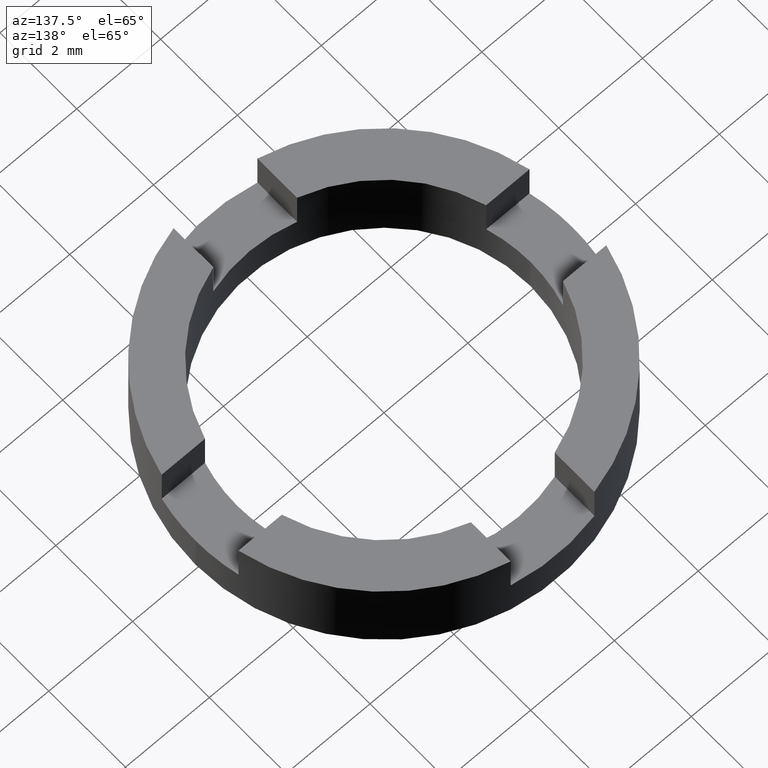
[diagram: clean part render]
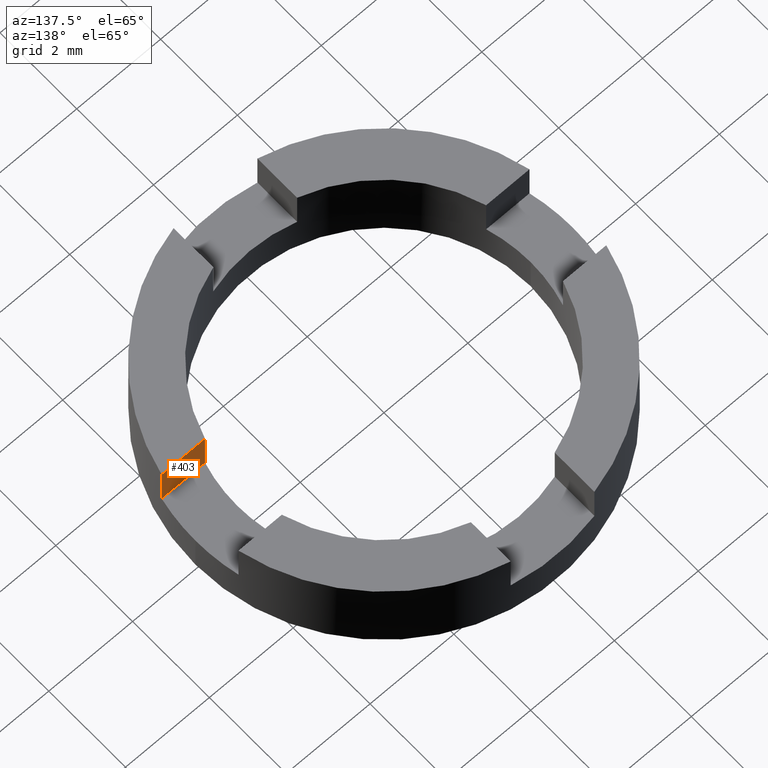
[diagram: same view with one face highlighted and labeled with its STEP entity id]
A machine part, auxiliary view. The second image highlights one B-rep face of the part: STEP entity #403.
In plain terms, the highlighted planar face has unit normal (0, -1, 0).
Its self-contained STEP definition (entity closure, byte-faithful):
#18 = CARTESIAN_POINT ( 'NONE',  ( 4.387482193696071064, -0.9999999999999544809, 1.000000000000000000 ) ) ;
#36 = AXIS2_PLACEMENT_3D ( 'NONE', #592, #166, #656 ) ;
#49 = EDGE_CURVE ( 'NONE', #704, #588, #664, .T. ) ;
#53 = DIRECTION ( 'NONE',  ( 0.000000000000000000, 0.000000000000000000, 1.000000000000000000 ) ) ;
#56 = CARTESIAN_POINT ( 'NONE',  ( 3.354101966249698030, -0.9999999999999547029, 2.000000000000000000 ) ) ;
#75 = EDGE_CURVE ( 'NONE', #128, #678, #777, .T. ) ;
#88 = VECTOR ( 'NONE', #778, 1000.000000000000000 ) ;
#99 = VECTOR ( 'NONE', #603, 1000.000000000000000 ) ;
#122 = CARTESIAN_POINT ( 'NONE',  ( 3.354101966249698030, -0.9999999999999547029, 1.000000000000000000 ) ) ;
#128 = VERTEX_POINT ( 'NONE', #18 ) ;
#166 = DIRECTION ( 'NONE',  ( 1.279323200775837468E-16, -1.000000000000000000, 0.000000000000000000 ) ) ;
#232 = LINE ( 'NONE', #315, #379 ) ;
#274 = ORIENTED_EDGE ( 'NONE', *, *, #670, .T. ) ;
#278 = PLANE ( 'NONE',  #36 ) ;
#298 = VECTOR ( 'NONE', #53, 1000.000000000000000 ) ;
#315 = CARTESIAN_POINT ( 'NONE',  ( 2.805037895306199403, -0.9999999999999547029, 2.000000000000000000 ) ) ;
#379 = VECTOR ( 'NONE', #673, 1000.000000000000000 ) ;
#403 = ADVANCED_FACE ( 'NONE', ( #586 ), #278, .F. ) ;
#404 = CARTESIAN_POINT ( 'NONE',  ( 3.354101966249698030, -0.9999999999999547029, 2.000000000000000000 ) ) ;
#421 = EDGE_CURVE ( 'NONE', #704, #128, #715, .T. ) ;
#437 = ORIENTED_EDGE ( 'NONE', *, *, #49, .T. ) ;
#469 = CARTESIAN_POINT ( 'NONE',  ( 2.805037895306199403, -0.9999999999999547029, 1.000000000000000000 ) ) ;
#548 = CARTESIAN_POINT ( 'NONE',  ( 4.387482193696071064, -0.9999999999999544809, 2.000000000000000000 ) ) ;
#586 = FACE_OUTER_BOUND ( 'NONE', #640, .T. ) ;
#588 = VERTEX_POINT ( 'NONE', #404 ) ;
#592 = CARTESIAN_POINT ( 'NONE',  ( 2.805037895306199403, -0.9999999999999547029, 1.000000000000000000 ) ) ;
#603 = DIRECTION ( 'NONE',  ( 0.000000000000000000, 0.000000000000000000, 1.000000000000000000 ) ) ;
#624 = ORIENTED_EDGE ( 'NONE', *, *, #421, .F. ) ;
#640 = EDGE_LOOP ( 'NONE', ( #624, #437, #274, #686 ) ) ;
#656 = DIRECTION ( 'NONE',  ( 1.000000000000000000, 1.279323200775837468E-16, 0.000000000000000000 ) ) ;
#664 = LINE ( 'NONE', #56, #99 ) ;
#666 = CARTESIAN_POINT ( 'NONE',  ( 4.387482193696071064, -0.9999999999999544809, 2.000000000000000000 ) ) ;
#670 = EDGE_CURVE ( 'NONE', #588, #678, #232, .T. ) ;
#673 = DIRECTION ( 'NONE',  ( 1.000000000000000000, 1.279323200775837468E-16, 0.000000000000000000 ) ) ;
#678 = VERTEX_POINT ( 'NONE', #548 ) ;
#686 = ORIENTED_EDGE ( 'NONE', *, *, #75, .F. ) ;
#704 = VERTEX_POINT ( 'NONE', #122 ) ;
#715 = LINE ( 'NONE', #469, #88 ) ;
#777 = LINE ( 'NONE', #666, #298 ) ;
#778 = DIRECTION ( 'NONE',  ( 1.000000000000000000, 1.279323200775837468E-16, 0.000000000000000000 ) ) ;